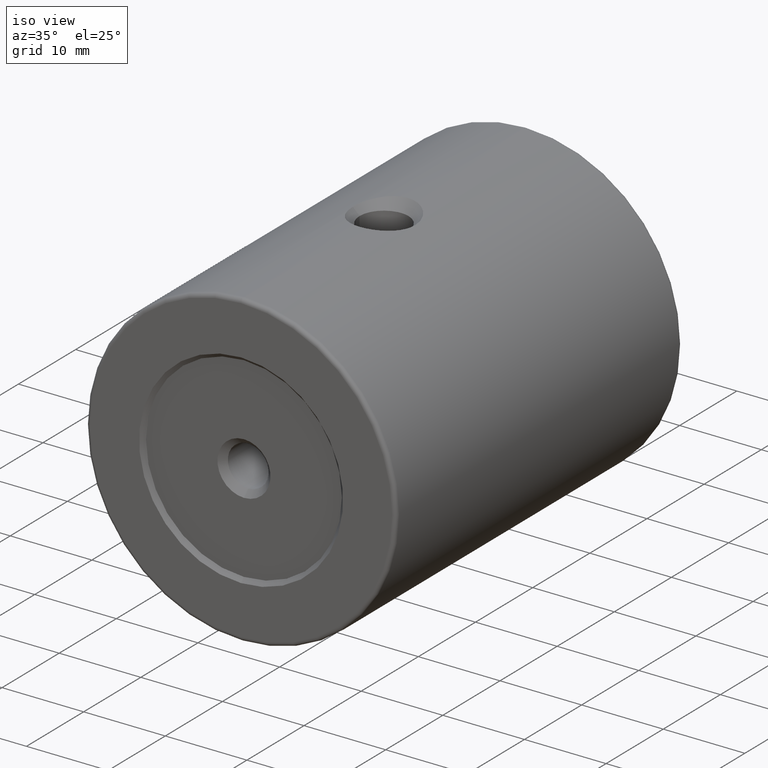
[diagram: clean part render]
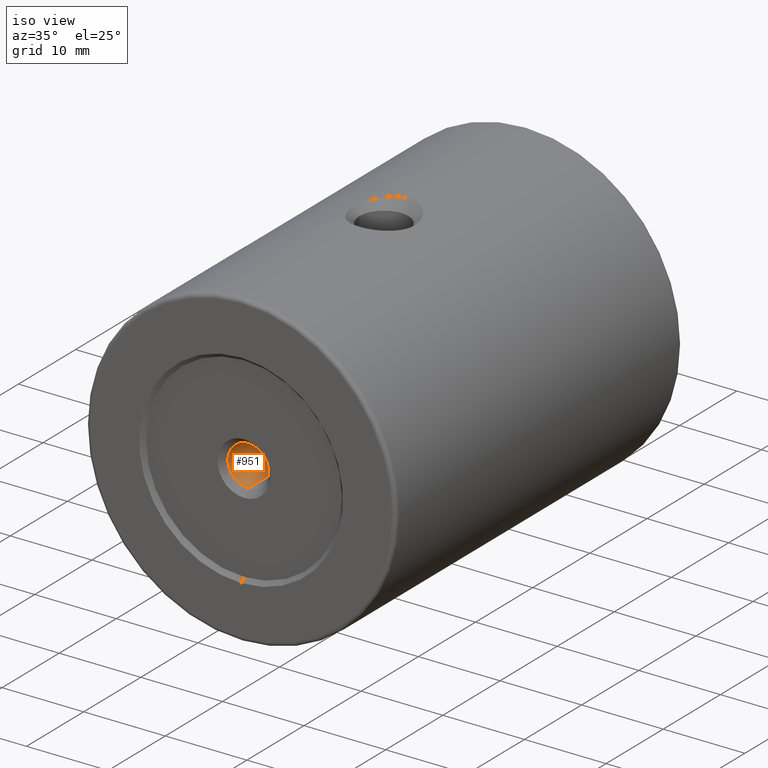
[diagram: same view with one face highlighted and labeled with its STEP entity id]
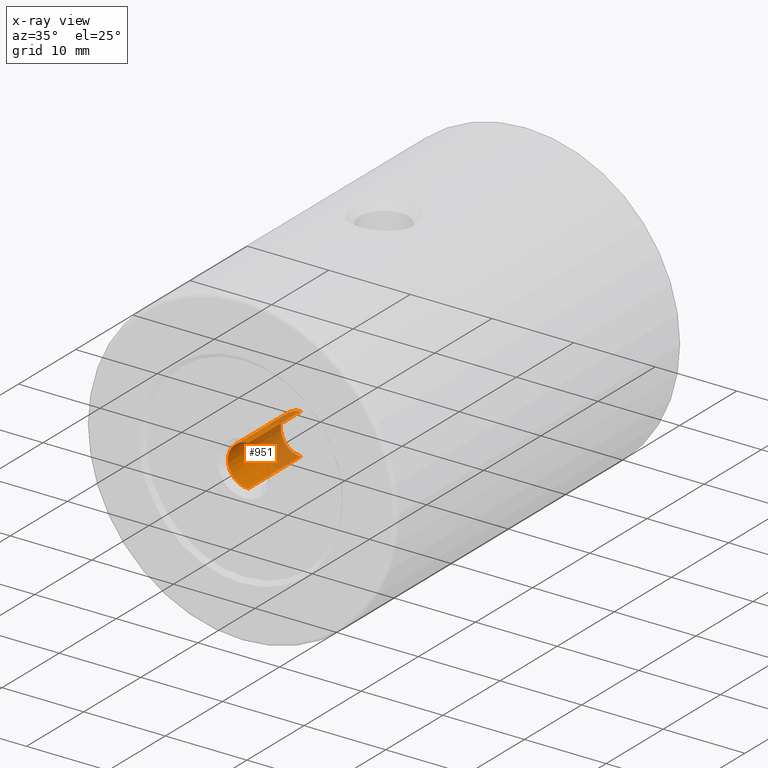
[diagram: x-ray of the same camera — body ghosted, the highlighted face saturated]
A machine part, iso view. The second image highlights one B-rep face of the part: STEP entity #951.
The next image is the same camera in x-ray: the body ghosted, the highlighted face saturated — about 39% of this face is hidden behind the body in this view.
In plain terms, the highlighted cylindrical surface (edge-blend (fillet) strip) has radius 2.5 mm, axis along (-0, -1, -0).
Its self-contained STEP definition (entity closure, byte-faithful):
#3 = FACE_OUTER_BOUND ( 'NONE', #629, .T. ) ;
#10 = AXIS2_PLACEMENT_3D ( 'NONE', #833, #685, #133 ) ;
#64 = ORIENTED_EDGE ( 'NONE', *, *, #843, .T. ) ;
#92 = VERTEX_POINT ( 'NONE', #874 ) ;
#114 = ORIENTED_EDGE ( 'NONE', *, *, #787, .F. ) ;
#133 = DIRECTION ( 'NONE',  ( 0.0000000000000000000, 0.0000000000000000000, -1.000000000000000000 ) ) ;
#201 = VERTEX_POINT ( 'NONE', #585 ) ;
#226 = CARTESIAN_POINT ( 'NONE',  ( -85.22679983354142053, -18.76133999167428712, 397.5000000000000000 ) ) ;
#239 = AXIS2_PLACEMENT_3D ( 'NONE', #464, #388, #546 ) ;
#309 = CARTESIAN_POINT ( 'NONE',  ( -85.22679983354142053, -28.01133999167428712, 402.5000000000000000 ) ) ;
#343 = CIRCLE ( 'NONE', #920, 2.500000000000002220 ) ;
#355 = CARTESIAN_POINT ( 'NONE',  ( -85.22679983354142053, -28.76133999167428357, 397.5000000000000000 ) ) ;
#375 = DIRECTION ( 'NONE',  ( 0.0000000000000000000, 0.0000000000000000000, -1.000000000000000000 ) ) ;
#385 = CYLINDRICAL_SURFACE ( 'NONE', #239, 2.500000000000002220 ) ;
#388 = DIRECTION ( 'NONE',  ( -0.0000000000000000000, -1.000000000000000000, -0.0000000000000000000 ) ) ;
#416 = LINE ( 'NONE', #734, #572 ) ;
#418 = ORIENTED_EDGE ( 'NONE', *, *, #747, .F. ) ;
#419 = ORIENTED_EDGE ( 'NONE', *, *, #683, .T. ) ;
#436 = CARTESIAN_POINT ( 'NONE',  ( -85.22679983354142053, -18.76133999167428712, 400.0000000000000000 ) ) ;
#457 = CIRCLE ( 'NONE', #10, 2.500000000000002220 ) ;
#464 = CARTESIAN_POINT ( 'NONE',  ( -85.22679983354142053, -28.76133999167428357, 400.0000000000000000 ) ) ;
#546 = DIRECTION ( 'NONE',  ( 0.0000000000000000000, 0.0000000000000000000, -1.000000000000000000 ) ) ;
#556 = VECTOR ( 'NONE', #969, 1000.000000000000000 ) ;
#572 = VECTOR ( 'NONE', #817, 1000.000000000000000 ) ;
#585 = CARTESIAN_POINT ( 'NONE',  ( -85.22679983354142053, -28.01133999167428712, 397.5000000000000000 ) ) ;
#601 = VERTEX_POINT ( 'NONE', #309 ) ;
#629 = EDGE_LOOP ( 'NONE', ( #114, #419, #64, #418 ) ) ;
#665 = LINE ( 'NONE', #355, #556 ) ;
#683 = EDGE_CURVE ( 'NONE', #92, #601, #416, .T. ) ;
#685 = DIRECTION ( 'NONE',  ( 0.0000000000000000000, -1.000000000000000000, 0.0000000000000000000 ) ) ;
#734 = CARTESIAN_POINT ( 'NONE',  ( -85.22679983354142053, -28.76133999167428357, 402.5000000000000000 ) ) ;
#747 = EDGE_CURVE ( 'NONE', #912, #201, #665, .T. ) ;
#787 = EDGE_CURVE ( 'NONE', #92, #912, #343, .T. ) ;
#817 = DIRECTION ( 'NONE',  ( -0.0000000000000000000, -1.000000000000000000, -0.0000000000000000000 ) ) ;
#833 = CARTESIAN_POINT ( 'NONE',  ( -85.22679983354142053, -28.01133999167428712, 400.0000000000000000 ) ) ;
#843 = EDGE_CURVE ( 'NONE', #601, #201, #457, .T. ) ;
#874 = CARTESIAN_POINT ( 'NONE',  ( -85.22679983354142053, -18.76133999167428712, 402.5000000000000000 ) ) ;
#912 = VERTEX_POINT ( 'NONE', #226 ) ;
#920 = AXIS2_PLACEMENT_3D ( 'NONE', #436, #1002, #375 ) ;
#951 = ADVANCED_FACE ( 'NONE', ( #3 ), #385, .F. ) ;
#969 = DIRECTION ( 'NONE',  ( -0.0000000000000000000, -1.000000000000000000, -0.0000000000000000000 ) ) ;
#1002 = DIRECTION ( 'NONE',  ( -0.0000000000000000000, -1.000000000000000000, -0.0000000000000000000 ) ) ;